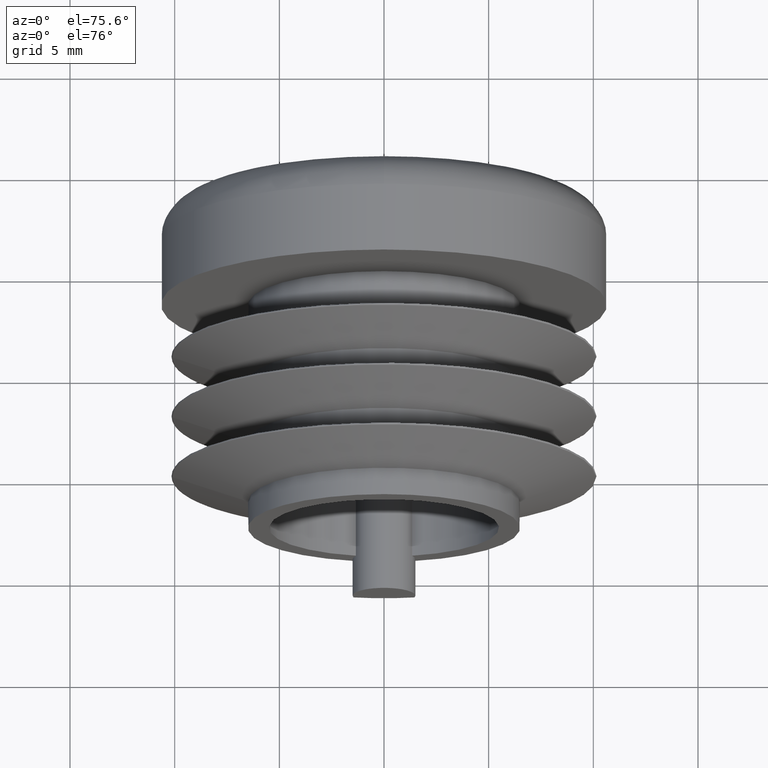
[diagram: clean part render]
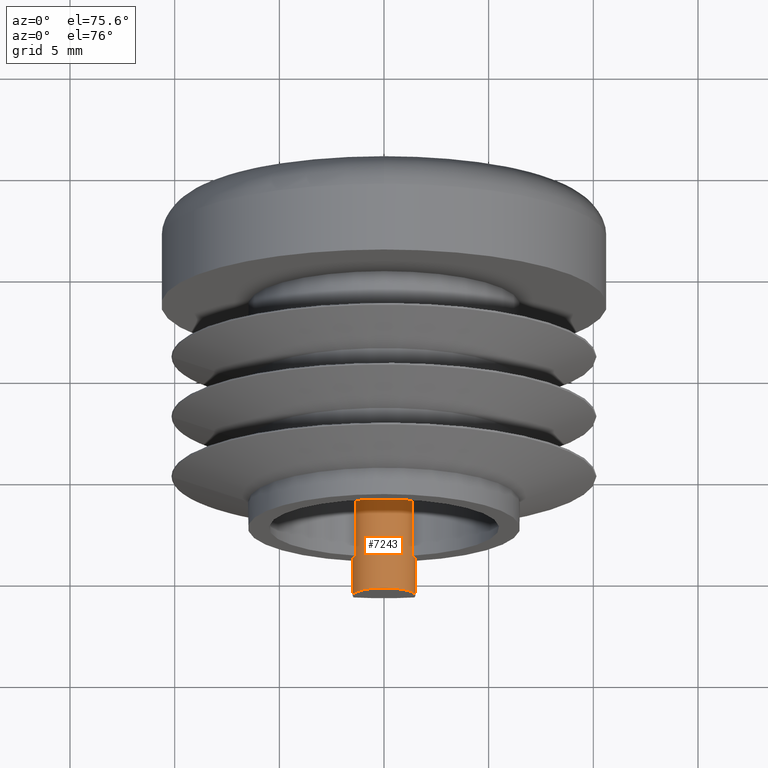
[diagram: same view with one face highlighted and labeled with its STEP entity id]
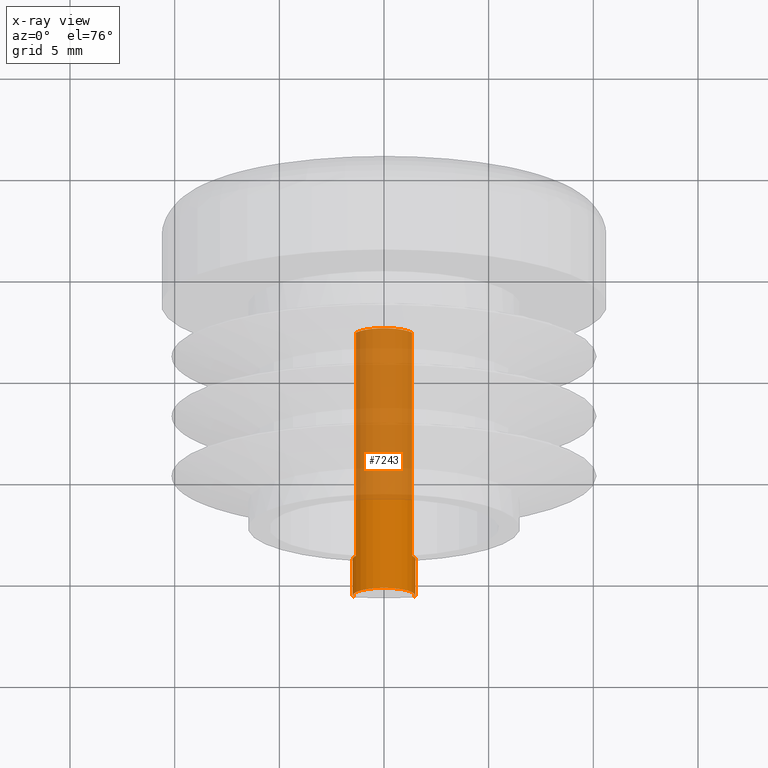
[diagram: x-ray of the same camera — body ghosted, the highlighted face saturated]
A machine part, auxiliary view. The second image highlights one B-rep face of the part: STEP entity #7243.
The next image is the same camera in x-ray: the body ghosted, the highlighted face saturated — about 64% of this face is hidden behind the body in this view.
In plain terms, the highlighted cylindrical surface (edge-blend (fillet) strip) has radius 1.5 mm, axis along (0, -1, 0).
Its self-contained STEP definition (entity closure, byte-faithful):
#3 = DIRECTION ( 'NONE',  ( 0.000000000000000000, -1.000000000000000000, 0.000000000000000000 ) ) ;
#584 = LINE ( 'NONE', #5880, #4761 ) ;
#605 = ORIENTED_EDGE ( 'NONE', *, *, #7003, .T. ) ;
#622 = VECTOR ( 'NONE', #2944, 1000.000000000000000 ) ;
#880 = CARTESIAN_POINT ( 'NONE',  ( 0.000000000000000000, 16.00199999999999889, -6.000000000000000000 ) ) ;
#944 = EDGE_CURVE ( 'NONE', #7324, #9304, #1581, .T. ) ;
#988 = CARTESIAN_POINT ( 'NONE',  ( 0.000000000000000000, 0.000000000000000000, -6.000000000000000000 ) ) ;
#1035 = FACE_OUTER_BOUND ( 'NONE', #7076, .T. ) ;
#1141 = VECTOR ( 'NONE', #2540, 1000.000000000000000 ) ;
#1166 = CARTESIAN_POINT ( 'NONE',  ( 1.462494064565357021, 0.000000000000000000, -6.333333333333333925 ) ) ;
#1505 = CARTESIAN_POINT ( 'NONE',  ( -1.343709624716428408, 5.500000000000000000, -5.333333333333332149 ) ) ;
#1581 = LINE ( 'NONE', #8050, #622 ) ;
#1742 = LINE ( 'NONE', #1505, #5574 ) ;
#1983 = LINE ( 'NONE', #8585, #1141 ) ;
#2017 = DIRECTION ( 'NONE',  ( 0.000000000000000000, -1.000000000000000000, 0.000000000000000000 ) ) ;
#2107 = CARTESIAN_POINT ( 'NONE',  ( 0.000000000000000000, 0.000000000000000000, -6.000000000000000000 ) ) ;
#2118 = CIRCLE ( 'NONE', #8268, 1.500000000000003109 ) ;
#2235 = EDGE_CURVE ( 'NONE', #6469, #9188, #1983, .T. ) ;
#2469 = EDGE_CURVE ( 'NONE', #9172, #7856, #1742, .T. ) ;
#2540 = DIRECTION ( 'NONE',  ( -0.000000000000000000, -1.000000000000000000, -0.000000000000000000 ) ) ;
#2944 = DIRECTION ( 'NONE',  ( -0.000000000000000000, 1.000000000000000000, -0.000000000000000000 ) ) ;
#2955 = CIRCLE ( 'NONE', #9328, 1.500000000000003109 ) ;
#3587 = DIRECTION ( 'NONE',  ( 0.000000000000000000, 0.000000000000000000, -1.000000000000000000 ) ) ;
#3713 = ORIENTED_EDGE ( 'NONE', *, *, #9107, .F. ) ;
#3900 = DIRECTION ( 'NONE',  ( 0.000000000000000000, 0.000000000000000000, -1.000000000000000000 ) ) ;
#4462 = DIRECTION ( 'NONE',  ( 0.000000000000000000, -1.000000000000000000, 0.000000000000000000 ) ) ;
#4634 = DIRECTION ( 'NONE',  ( 0.000000000000000000, 0.000000000000000000, -1.000000000000000000 ) ) ;
#4711 = EDGE_CURVE ( 'NONE', #8690, #8068, #584, .T. ) ;
#4761 = VECTOR ( 'NONE', #5072, 1000.000000000000000 ) ;
#4800 = ORIENTED_EDGE ( 'NONE', *, *, #5503, .F. ) ;
#5026 = AXIS2_PLACEMENT_3D ( 'NONE', #6274, #7040, #8609 ) ;
#5072 = DIRECTION ( 'NONE',  ( -0.000000000000000000, 1.000000000000000000, -0.000000000000000000 ) ) ;
#5503 = EDGE_CURVE ( 'NONE', #7856, #6469, #6798, .T. ) ;
#5574 = VECTOR ( 'NONE', #9951, 1000.000000000000000 ) ;
#5729 = ORIENTED_EDGE ( 'NONE', *, *, #2235, .F. ) ;
#5880 = CARTESIAN_POINT ( 'NONE',  ( 1.462494064565357021, -1.800000000000000044, -6.333333333333333925 ) ) ;
#5887 = ORIENTED_EDGE ( 'NONE', *, *, #2469, .F. ) ;
#6168 = CARTESIAN_POINT ( 'NONE',  ( 1.343709624716427742, 0.000000000000000000, -5.333333333333332149 ) ) ;
#6274 = CARTESIAN_POINT ( 'NONE',  ( 0.000000000000000000, 11.00000000000000000, -6.000000000000000000 ) ) ;
#6335 = DIRECTION ( 'NONE',  ( 0.000000000000000000, -1.000000000000000000, 0.000000000000000000 ) ) ;
#6420 = CIRCLE ( 'NONE', #8465, 1.500000000000003109 ) ;
#6469 = VERTEX_POINT ( 'NONE', #8030 ) ;
#6698 = ORIENTED_EDGE ( 'NONE', *, *, #8772, .T. ) ;
#6798 = CIRCLE ( 'NONE', #5026, 1.500000000000003109 ) ;
#6963 = CARTESIAN_POINT ( 'NONE',  ( -1.343709624716428852, 11.00000000000000000, -5.333333333333332149 ) ) ;
#7003 = EDGE_CURVE ( 'NONE', #8068, #9188, #6420, .T. ) ;
#7040 = DIRECTION ( 'NONE',  ( 0.000000000000000000, 1.000000000000000000, 0.000000000000000000 ) ) ;
#7076 = EDGE_LOOP ( 'NONE', ( #5887, #6698, #9385, #3713, #8046, #605, #5729, #4800 ) ) ;
#7243 = ADVANCED_FACE ( 'NONE', ( #1035 ), #7261, .T. ) ;
#7261 = CYLINDRICAL_SURFACE ( 'NONE', #9888, 1.500000000000003109 ) ;
#7324 = VERTEX_POINT ( 'NONE', #9313 ) ;
#7669 = CARTESIAN_POINT ( 'NONE',  ( -1.343709624716427742, 0.000000000000000000, -5.333333333333332149 ) ) ;
#7725 = CARTESIAN_POINT ( 'NONE',  ( 1.462494064565357021, -1.800000000000000044, -6.333333333333333925 ) ) ;
#7856 = VERTEX_POINT ( 'NONE', #6963 ) ;
#8030 = CARTESIAN_POINT ( 'NONE',  ( 1.343709624716427964, 11.00000000000000000, -5.333333333333332149 ) ) ;
#8046 = ORIENTED_EDGE ( 'NONE', *, *, #4711, .T. ) ;
#8050 = CARTESIAN_POINT ( 'NONE',  ( -1.462494064565357021, -1.800000000000000044, -6.333333333333333925 ) ) ;
#8068 = VERTEX_POINT ( 'NONE', #1166 ) ;
#8268 = AXIS2_PLACEMENT_3D ( 'NONE', #988, #6335, #3900 ) ;
#8317 = CARTESIAN_POINT ( 'NONE',  ( 0.000000000000000000, -1.800000000000000044, -6.000000000000000000 ) ) ;
#8465 = AXIS2_PLACEMENT_3D ( 'NONE', #2107, #2017, #3587 ) ;
#8585 = CARTESIAN_POINT ( 'NONE',  ( 1.343709624716428408, 5.500000000000000000, -5.333333333333332149 ) ) ;
#8609 = DIRECTION ( 'NONE',  ( 0.000000000000000000, 0.000000000000000000, -1.000000000000000000 ) ) ;
#8690 = VERTEX_POINT ( 'NONE', #7725 ) ;
#8772 = EDGE_CURVE ( 'NONE', #9172, #9304, #2118, .T. ) ;
#9107 = EDGE_CURVE ( 'NONE', #8690, #7324, #2955, .T. ) ;
#9172 = VERTEX_POINT ( 'NONE', #7669 ) ;
#9188 = VERTEX_POINT ( 'NONE', #6168 ) ;
#9304 = VERTEX_POINT ( 'NONE', #9380 ) ;
#9313 = CARTESIAN_POINT ( 'NONE',  ( -1.462494064565357021, -1.800000000000000044, -6.333333333333333925 ) ) ;
#9328 = AXIS2_PLACEMENT_3D ( 'NONE', #8317, #4462, #9878 ) ;
#9380 = CARTESIAN_POINT ( 'NONE',  ( -1.462494064565356577, 0.000000000000000000, -6.333333333333332149 ) ) ;
#9385 = ORIENTED_EDGE ( 'NONE', *, *, #944, .F. ) ;
#9878 = DIRECTION ( 'NONE',  ( 0.000000000000000000, 0.000000000000000000, -1.000000000000000000 ) ) ;
#9888 = AXIS2_PLACEMENT_3D ( 'NONE', #880, #3, #4634 ) ;
#9951 = DIRECTION ( 'NONE',  ( 0.000000000000000000, 1.000000000000000000, 0.000000000000000000 ) ) ;